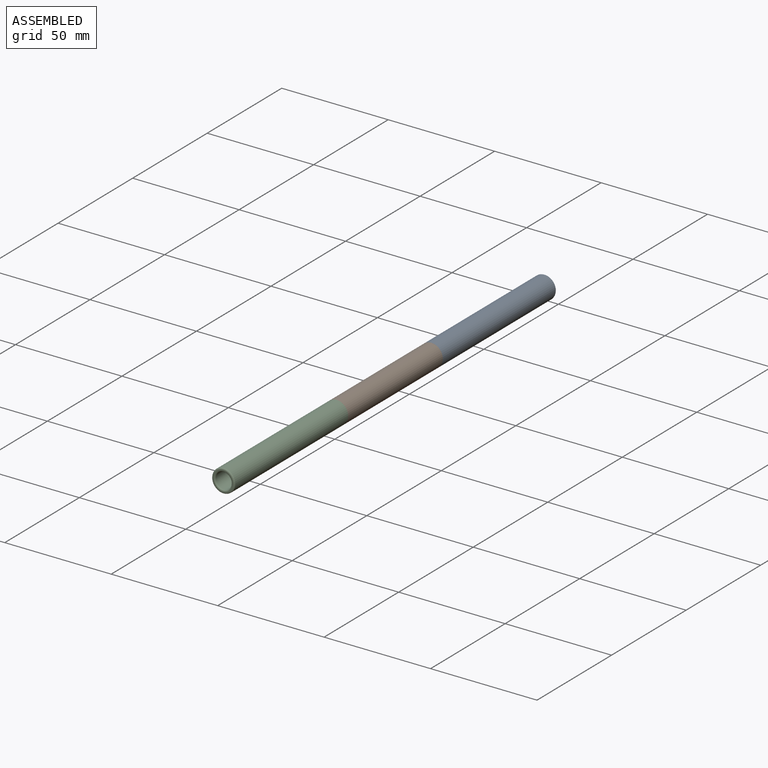
[diagram: assembled view]
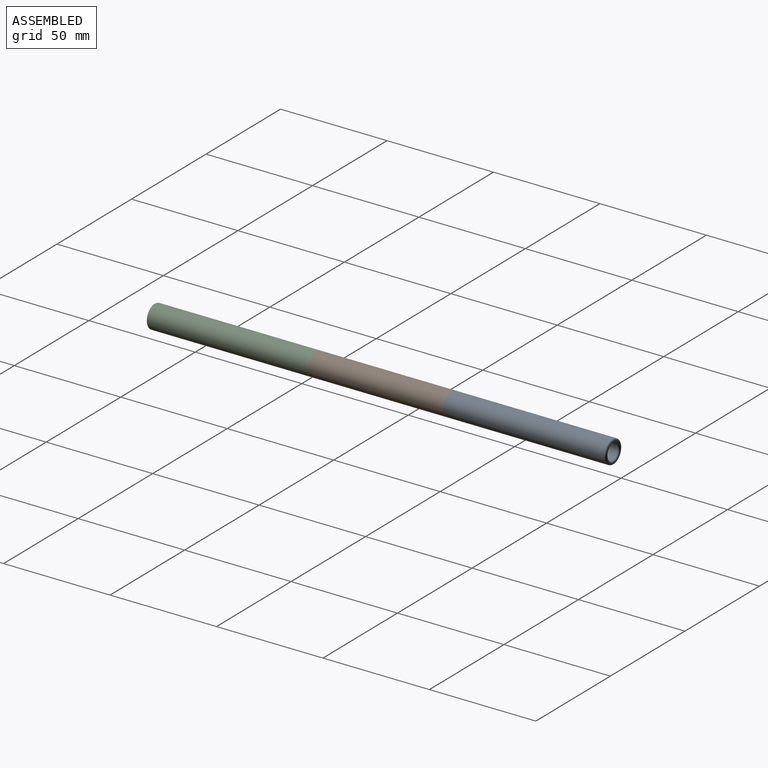
[diagram: assembled view, second angle]
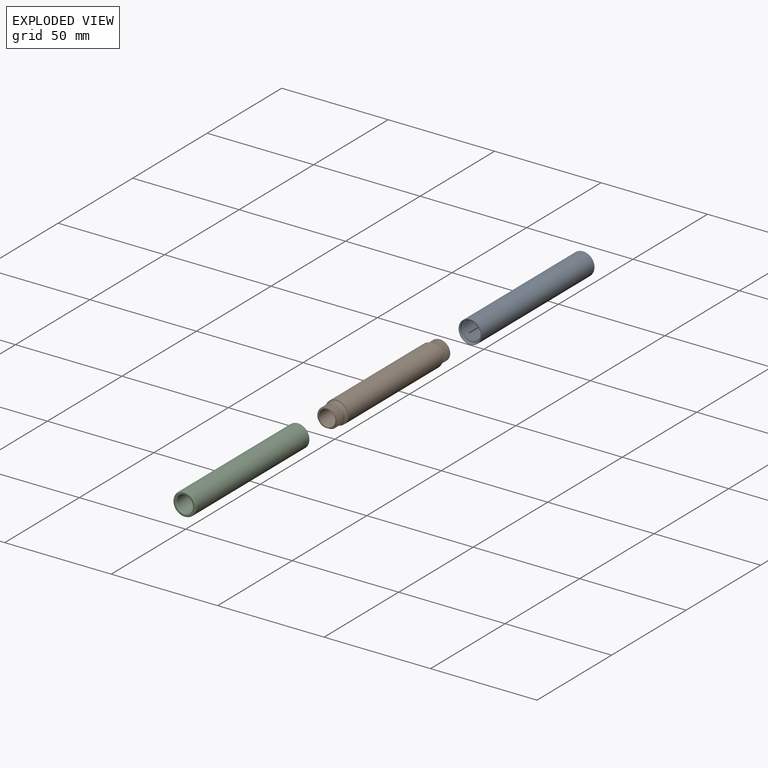
[diagram: exploded view]
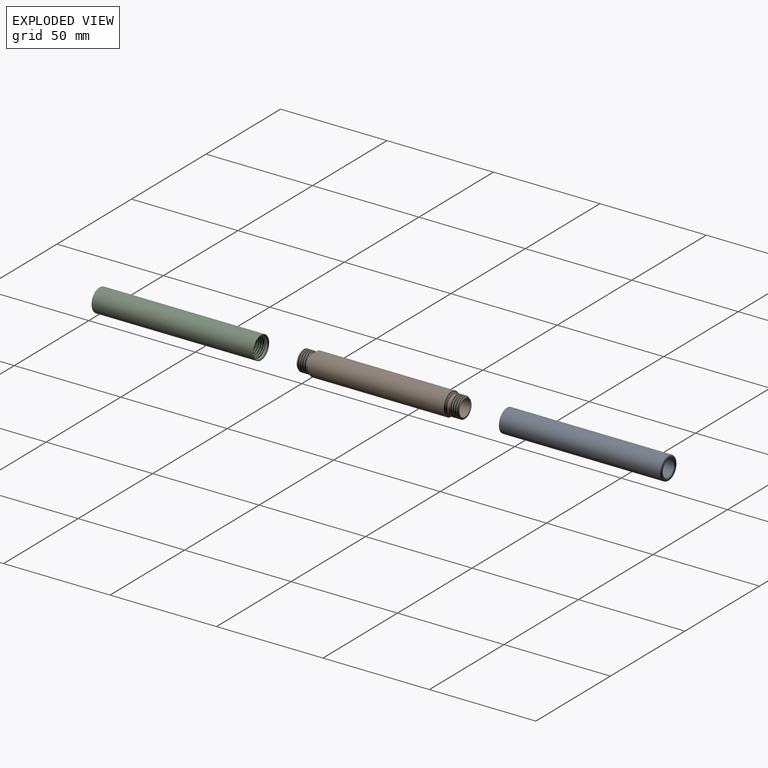
[diagram: exploded view, second angle]
ASSEMBLY  parts=3 mates=4
PART A: 22 faces, bbox 12x76.5x12 mm
  f0: cylinder r=4.19mm len=8.38mm, axis (0,-1,0), area 26.1mm2, adj f7,f9,f16,f17,f19
  f1: cylinder r=4.19mm len=7.93mm, axis (0,-1,0), area 2.1mm2, adj f2,f10,f17,f19
  f2: cylinder r=4.19mm len=8.38mm, axis (0,-1,0), area 7mm2, adj f1,f3,f17,f19
  f3: cylinder r=4.19mm len=8.38mm, axis (0,-1,0), area 7mm2, adj f2,f4,f17,f19
  f4: cylinder r=4.19mm len=8.38mm, axis (0,-1,0), area 7mm2, adj f3,f5,f17,f19
  f5: cylinder r=4.19mm len=8.38mm, axis (0,-1,0), area 7mm2, adj f4,f6,f17,f19
  f6: cylinder r=4.19mm len=8.38mm, axis (0,-1,0), area 7mm2, adj f5,f7,f17,f19
  f7: cylinder r=4.19mm len=8.38mm, axis (0,-1,0), area 7mm2, adj f0,f6,f17,f19
  f8: cylinder r=3.81mm len=66.04mm, axis (0,-1,0), area 1580.9mm2, adj f9,f21
  f9: plane 8.38x8.38mm, normal (0,1,0), area 9.5mm2, adj f0,f8
  f10: plane 9.96x9.96mm, normal (0,1,0), area 11.1mm2, adj f1,f11,f17,f18,f19
  f11: cylinder r=4.83mm len=9.65mm, axis (0,-1,0), area 27mm2, adj f10,f15
  f12: plane 10.8x10.8mm, normal (0,1,0), area 6.3mm2, adj f13,f15
  f13: cylinder r=5.4mm len=75.57mm, axis (0,-1,0), area 2562.7mm2, adj f12,f20
  f14: plane 9.53x9.53mm, normal (0,-1,0), area 9.2mm2, adj f20,f21
  f15: cone r=5.21mm half-angle=45deg, axis (0,1,0), area 17mm2, adj f11,f12
  f16: plane 0.79x0.57mm, normal (0,0,-1), area 0.3mm2, adj f0,f17,f18,f19
  f17: bspline ~11x9.53mm, area 134.9mm2, adj f0,f1,f2,f3,f4,f5,f6,f7
  f18: cylinder r=4.76mm len=9.53mm, axis (0,-1,0), area 33.9mm2, adj f10,f16,f17,f19
  f19: bspline ~11x9.53mm, area 127.2mm2, adj f0,f1,f2,f3,f4,f5,f6,f7
  f20: torus R=4.76mm, axis (0,-1,0), area 32.4mm2, adj f13,f14
  f21: torus R=4.45mm, axis (0,-1,0), area 25.3mm2, adj f8,f14
PART B: 30 faces, bbox 10.9x76.9x11.1 mm
  f0: bspline ~11x9.53mm, area 78.1mm2, adj f1,f3,f4,f5,f6,f7,f27,f28
  f1: cylinder r=4.76mm len=9.53mm, axis (0,-1,0), area 15.5mm2, adj f0,f2,f28,f29
  f2: bspline ~11x9.53mm, area 78.1mm2, adj f1,f3,f4,f5,f6,f7,f17,f28
  f3: cylinder r=4.19mm len=8.38mm, axis (0,-1,0), area 22.6mm2, adj f0,f2,f4,f23,f27,f28
  f4: cylinder r=4.19mm len=8.38mm, axis (0,-1,0), area 7mm2, adj f0,f2,f3,f5
  f5: cylinder r=4.19mm len=8.38mm, axis (0,-1,0), area 7mm2, adj f0,f2,f4,f6
  f6: cylinder r=4.19mm len=8.38mm, axis (0,-1,0), area 7mm2, adj f0,f2,f5,f7
  f7: cylinder r=4.19mm len=8.38mm, axis (0,-1,0), area 7.1mm2, adj f0,f2,f6,f17,f29
  f8: bspline ~11x9.53mm, area 78.1mm2, adj f9,f11,f12,f13,f14,f24,f25,f26
  f9: cylinder r=4.76mm len=9.53mm, axis (0,1,0), area 15.5mm2, adj f8,f10,f25,f26
  f10: bspline ~11x9.53mm, area 78.1mm2, adj f9,f11,f12,f13,f14,f15,f21,f25
  f11: cylinder r=4.19mm len=8.38mm, axis (0,-1,0), area 26.4mm2, adj f8,f10,f12,f22,f24,f25
  f12: cylinder r=4.19mm len=8.38mm, axis (0,-1,0), area 7mm2, adj f8,f10,f11,f13
  f13: cylinder r=4.19mm len=8.38mm, axis (0,-1,0), area 7mm2, adj f8,f10,f12,f14
  f14: cylinder r=4.19mm len=8.38mm, axis (0,-1,0), area 7.8mm2, adj f8,f10,f13,f15,f21,f26
  f15: cylinder r=4.19mm len=8.38mm, axis (0,-1,0), area 3.5mm2, adj f10,f14,f21
  f16: cylinder r=3.81mm len=76.2mm, axis (0,-1,0), area 1824.1mm2, adj f17,f21
  f17: plane 8.74x8.54mm, normal (0,1,0), area 11.2mm2, adj f2,f7,f16,f29
  f18: plane 10.8x10.8mm, normal (0,1,0), area 10.5mm2, adj f19,f23
  f19: cylinder r=5.4mm len=63.5mm, axis (0,-1,0), area 2153.5mm2, adj f18,f20
  f20: plane 10.8x10.8mm, normal (0,-1,0), area 10.5mm2, adj f19,f22
  f21: plane 8.74x8.54mm, normal (0,-1,0), area 11.2mm2, adj f10,f14,f15,f16,f26
  f22: cone r=4.19mm half-angle=45deg, axis (0,1,0), area 36.6mm2, adj f11,f20
  f23: cone r=5.08mm half-angle=45deg, axis (0,-1,0), area 36.6mm2, adj f3,f18
  f24: plane 7.68x3.05mm, normal (0,1,0), area 1.6mm2, adj f8,f11,f25
  f25: bspline ~8.06x6.82mm, area 3.8mm2, adj f8,f9,f10,f11,f24
  f26: bspline ~9.4x4.85mm, area 3.9mm2, adj f8,f9,f10,f14,f21
  f27: plane 7.68x3.05mm, normal (0,-1,0), area 1.6mm2, adj f0,f3,f28
  f28: bspline ~8.06x6.82mm, area 3.8mm2, adj f0,f1,f2,f3,f27
  f29: bspline ~9.4x4.85mm, area 3.9mm2, adj f0,f1,f2,f7,f17
PART C: same geometry as A
PLACE A rot(axis=(0.2,0,0.98),180deg) t=(-2.65,144.74,-1.54)mm
PLACE B rot(axis=(0,-1,0),40.4deg) t=(-2.65,-1.31,-1.54)mm
PLACE C rot(axis=(0,1,0),10.7deg) t=(-2.65,-71.16,-1.54)mm fixed
MATE cylindrical B.f3 <-> A.f0  axis (0,-1,0) through (-2.65,36.79,-1.54)mm
MATE cylindrical B.f3 <-> C.f0  axis (0,-1,0) through (-2.65,36.79,-1.54)mm
MATE planar A.f0 <-> B.f3  axis (0,-1,0) through (-2.65,68.54,-1.54)mm
MATE planar B.f1 <-> C.f0  axis (0,-1,0) through (-2.65,5.04,-1.54)mm
